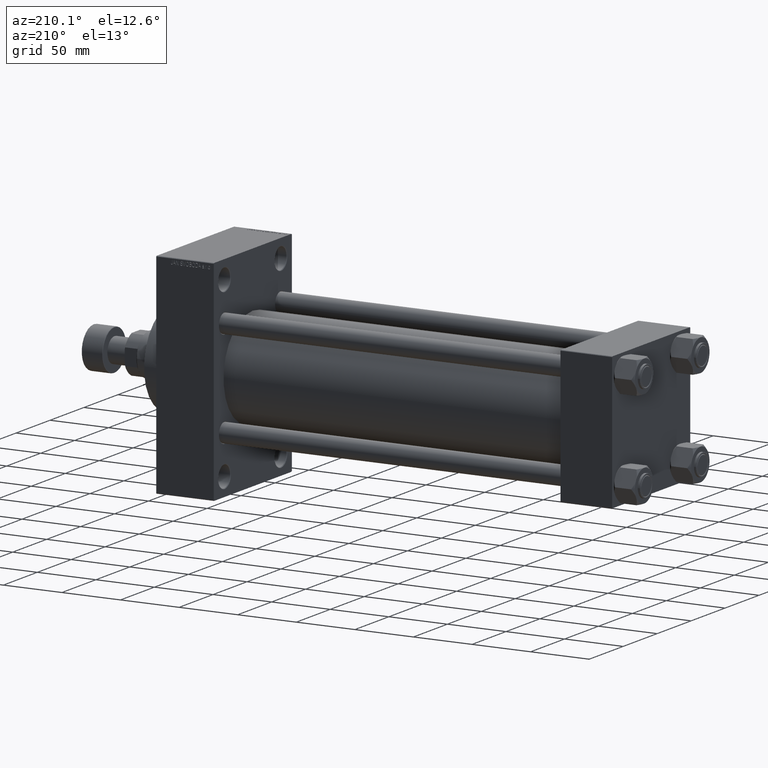
[diagram: clean part render]
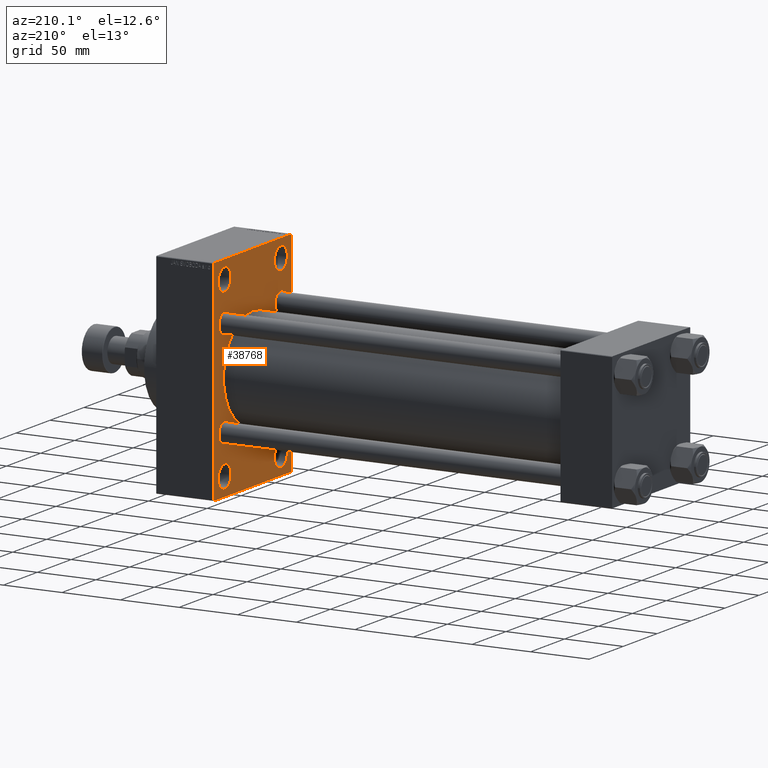
[diagram: same view with one face highlighted and labeled with its STEP entity id]
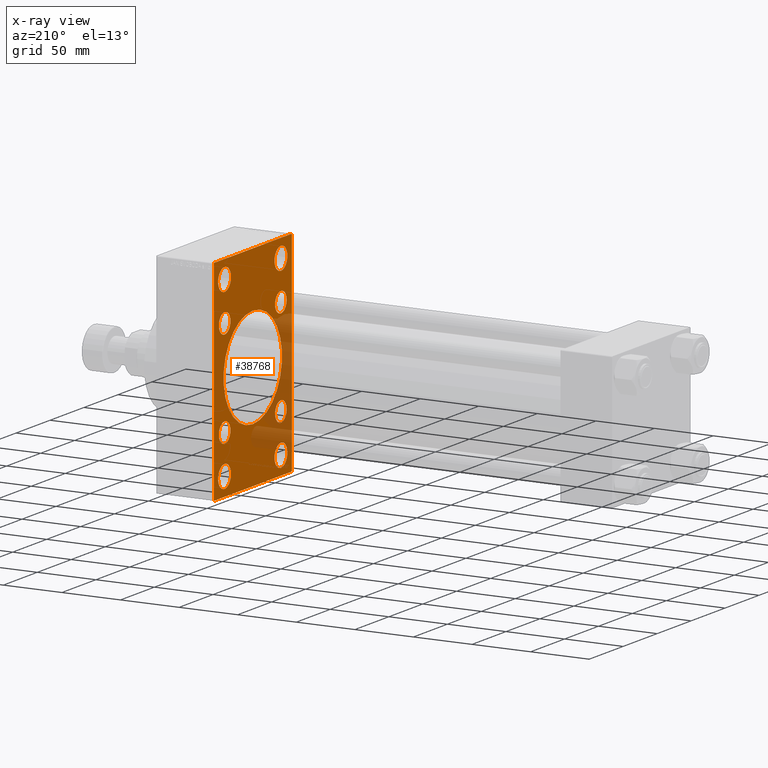
[diagram: x-ray of the same camera — body ghosted, the highlighted face saturated]
A machine part, auxiliary view. The second image highlights one B-rep face of the part: STEP entity #38768.
The next image is the same camera in x-ray: the body ghosted, the highlighted face saturated — about 21% of this face is hidden behind the body in this view.
In plain terms, the highlighted planar face has unit normal (-1, 0, 0).
Its self-contained STEP definition (entity closure, byte-faithful):
#248 = VERTEX_POINT ( 'NONE', #35170 ) ;
#362 = ORIENTED_EDGE ( 'NONE', *, *, #6468, .T. ) ;
#406 = DIRECTION ( 'NONE',  ( -0.000000000000000000, -0.7071067811865573427, -0.7071067811865378028 ) ) ;
#458 = VERTEX_POINT ( 'NONE', #30154 ) ;
#506 = AXIS2_PLACEMENT_3D ( 'NONE', #26643, #11740, #45248 ) ;
#623 = AXIS2_PLACEMENT_3D ( 'NONE', #8592, #8111, #19143 ) ;
#671 = EDGE_CURVE ( 'NONE', #21686, #27157, #994, .T. ) ;
#987 = EDGE_LOOP ( 'NONE', ( #13451, #17661 ) ) ;
#991 = EDGE_LOOP ( 'NONE', ( #31301, #16054 ) ) ;
#994 = LINE ( 'NONE', #34265, #35295 ) ;
#1790 = EDGE_CURVE ( 'NONE', #29014, #35029, #10347, .T. ) ;
#1932 = DIRECTION ( 'NONE',  ( 1.000000000000000000, -0.000000000000000000, 0.000000000000000000 ) ) ;
#2410 = DIRECTION ( 'NONE',  ( 0.000000000000000000, 0.000000000000000000, 1.000000000000000000 ) ) ;
#2604 = CARTESIAN_POINT ( 'NONE',  ( 339.9999999999999432, -41.49999999999999289, -74.49999999999998579 ) ) ;
#2654 = EDGE_CURVE ( 'NONE', #5598, #18975, #29131, .T. ) ;
#2697 = ORIENTED_EDGE ( 'NONE', *, *, #15554, .T. ) ;
#3516 = VERTEX_POINT ( 'NONE', #33089 ) ;
#3532 = LINE ( 'NONE', #33601, #16492 ) ;
#3687 = CARTESIAN_POINT ( 'NONE',  ( 339.9999999999999432, 2.663896022368408223E-15, -43.00000000000000000 ) ) ;
#4057 = CARTESIAN_POINT ( 'NONE',  ( 339.9999999999999432, 0.000000000000000000, 0.000000000000000000 ) ) ;
#4071 = CARTESIAN_POINT ( 'NONE',  ( 339.9999999999999432, 41.50000000000000711, 74.50000000000001421 ) ) ;
#4719 = CARTESIAN_POINT ( 'NONE',  ( 339.9999999999999432, 56.99999999999997868, -90.00000000000000000 ) ) ;
#4955 = DIRECTION ( 'NONE',  ( 0.000000000000000000, 0.000000000000000000, 1.000000000000000000 ) ) ;
#5598 = VERTEX_POINT ( 'NONE', #48273 ) ;
#5657 = DIRECTION ( 'NONE',  ( 0.000000000000000000, 0.000000000000000000, 1.000000000000000000 ) ) ;
#5677 = LINE ( 'NONE', #46997, #20483 ) ;
#5808 = ORIENTED_EDGE ( 'NONE', *, *, #33409, .T. ) ;
#5842 = DIRECTION ( 'NONE',  ( 1.000000000000000000, -0.000000000000000000, 0.000000000000000000 ) ) ;
#6031 = DIRECTION ( 'NONE',  ( 0.000000000000000000, 0.000000000000000000, 1.000000000000000000 ) ) ;
#6102 = LINE ( 'NONE', #21498, #9493 ) ;
#6162 = CIRCLE ( 'NONE', #47526, 9.499999999999896971 ) ;
#6468 = EDGE_CURVE ( 'NONE', #248, #3516, #43330, .T. ) ;
#6469 = VERTEX_POINT ( 'NONE', #33831 ) ;
#6496 = VERTEX_POINT ( 'NONE', #19422 ) ;
#6582 = ORIENTED_EDGE ( 'NONE', *, *, #13879, .T. ) ;
#6636 = DIRECTION ( 'NONE',  ( 0.000000000000000000, 0.000000000000000000, -1.000000000000000000 ) ) ;
#6747 = CIRCLE ( 'NONE', #44257, 9.500000000000008882 ) ;
#6858 = CARTESIAN_POINT ( 'NONE',  ( 339.9999999999999432, -57.00000000000002132, -90.00000000000001421 ) ) ;
#7126 = EDGE_CURVE ( 'NONE', #40349, #21686, #18815, .T. ) ;
#7416 = DIRECTION ( 'NONE',  ( 1.000000000000000000, -0.000000000000000000, 0.000000000000000000 ) ) ;
#8111 = DIRECTION ( 'NONE',  ( 1.000000000000000000, -0.000000000000000000, 0.000000000000000000 ) ) ;
#8208 = CARTESIAN_POINT ( 'NONE',  ( 339.9999999999999432, 41.34999999999999432, -32.84999999999999432 ) ) ;
#8437 = DIRECTION ( 'NONE',  ( -0.000000000000000000, 0.000000000000000000, 1.000000000000000000 ) ) ;
#8545 = DIRECTION ( 'NONE',  ( 1.000000000000000000, -0.000000000000000000, 0.000000000000000000 ) ) ;
#8592 = CARTESIAN_POINT ( 'NONE',  ( 339.9999999999999432, -41.34999999999998721, -41.35000000000000853 ) ) ;
#8640 = VERTEX_POINT ( 'NONE', #21402 ) ;
#8657 = CARTESIAN_POINT ( 'NONE',  ( 339.9999999999999432, 41.50000000000000711, 65.00000000000000000 ) ) ;
#9262 = CIRCLE ( 'NONE', #16318, 9.499999999999896971 ) ;
#9346 = VERTEX_POINT ( 'NONE', #8208 ) ;
#9380 = EDGE_CURVE ( 'NONE', #27157, #25263, #23389, .T. ) ;
#9481 = EDGE_CURVE ( 'NONE', #6496, #21238, #45783, .T. ) ;
#9493 = VECTOR ( 'NONE', #48139, 1000.000000000000000 ) ;
#9580 = EDGE_CURVE ( 'NONE', #39639, #8640, #13121, .T. ) ;
#10347 = CIRCLE ( 'NONE', #22856, 9.500000000000008882 ) ;
#10353 = CARTESIAN_POINT ( 'NONE',  ( 339.9999999999999432, 41.34999999999999432, 49.85000000000001563 ) ) ;
#10568 = CARTESIAN_POINT ( 'NONE',  ( 339.9999999999999432, -41.49999999999999289, 84.00000000000001421 ) ) ;
#10648 = CARTESIAN_POINT ( 'NONE',  ( 339.9999999999999432, 56.99999999999997158, 89.99999999999998579 ) ) ;
#10858 = VERTEX_POINT ( 'NONE', #3687 ) ;
#11337 = DIRECTION ( 'NONE',  ( 0.000000000000000000, 0.000000000000000000, 1.000000000000000000 ) ) ;
#11399 = VECTOR ( 'NONE', #24598, 1000.000000000000114 ) ;
#11423 = DIRECTION ( 'NONE',  ( 0.000000000000000000, 0.000000000000000000, 1.000000000000000000 ) ) ;
#11477 = CARTESIAN_POINT ( 'NONE',  ( 339.9999999999999432, -41.49999999999999289, 74.50000000000001421 ) ) ;
#11516 = CARTESIAN_POINT ( 'NONE',  ( 339.9999999999999432, -41.34999999999998721, 41.35000000000000853 ) ) ;
#11592 = CARTESIAN_POINT ( 'NONE',  ( 339.9999999999999432, 41.50000000000000711, -74.50000000000000000 ) ) ;
#11740 = DIRECTION ( 'NONE',  ( 1.000000000000000000, 0.000000000000000000, 0.000000000000000000 ) ) ;
#11898 = FACE_BOUND ( 'NONE', #12082, .T. ) ;
#12082 = EDGE_LOOP ( 'NONE', ( #14402, #362 ) ) ;
#12114 = VECTOR ( 'NONE', #45700, 1000.000000000000114 ) ;
#12208 = CIRCLE ( 'NONE', #506, 43.00000000000000000 ) ;
#12539 = CARTESIAN_POINT ( 'NONE',  ( 339.9999999999999432, 41.34999999999999432, -49.85000000000001563 ) ) ;
#12725 = EDGE_CURVE ( 'NONE', #19709, #44883, #44187, .T. ) ;
#12760 = CARTESIAN_POINT ( 'NONE',  ( 339.9999999999999432, -41.49999999999999289, 74.50000000000001421 ) ) ;
#12787 = CARTESIAN_POINT ( 'NONE',  ( 339.9999999999999432, 41.50000000000000711, -74.50000000000000000 ) ) ;
#13121 = LINE ( 'NONE', #35132, #11399 ) ;
#13268 = CARTESIAN_POINT ( 'NONE',  ( 339.9999999999999432, -41.49999999999999289, -74.49999999999998579 ) ) ;
#13403 = ORIENTED_EDGE ( 'NONE', *, *, #36446, .T. ) ;
#13434 = EDGE_CURVE ( 'NONE', #35029, #29014, #38777, .T. ) ;
#13451 = ORIENTED_EDGE ( 'NONE', *, *, #25177, .T. ) ;
#13712 = EDGE_CURVE ( 'NONE', #18807, #10858, #12208, .T. ) ;
#13879 = EDGE_CURVE ( 'NONE', #21238, #6496, #6747, .T. ) ;
#13911 = CARTESIAN_POINT ( 'NONE',  ( 339.9999999999999432, 41.34999999999999432, -41.35000000000000142 ) ) ;
#14402 = ORIENTED_EDGE ( 'NONE', *, *, #47767, .T. ) ;
#14967 = DIRECTION ( 'NONE',  ( 1.000000000000000000, 0.000000000000000000, 0.000000000000000000 ) ) ;
#15143 = CARTESIAN_POINT ( 'NONE',  ( 339.9999999999999432, 73.49999999999998579, 73.49999999999998579 ) ) ;
#15239 = DIRECTION ( 'NONE',  ( 1.000000000000000000, -0.000000000000000000, 0.000000000000000000 ) ) ;
#15554 = EDGE_CURVE ( 'NONE', #36952, #48297, #17610, .T. ) ;
#15601 = VERTEX_POINT ( 'NONE', #31787 ) ;
#16054 = ORIENTED_EDGE ( 'NONE', *, *, #13434, .T. ) ;
#16300 = ORIENTED_EDGE ( 'NONE', *, *, #29153, .T. ) ;
#16318 = AXIS2_PLACEMENT_3D ( 'NONE', #2604, #16557, #31465 ) ;
#16492 = VECTOR ( 'NONE', #41200, 1000.000000000000000 ) ;
#16557 = DIRECTION ( 'NONE',  ( 1.000000000000000000, -0.000000000000000000, 0.000000000000000000 ) ) ;
#16880 = CIRCLE ( 'NONE', #23122, 8.500000000000007105 ) ;
#17001 = AXIS2_PLACEMENT_3D ( 'NONE', #13911, #5842, #2410 ) ;
#17418 = ORIENTED_EDGE ( 'NONE', *, *, #2654, .T. ) ;
#17495 = EDGE_CURVE ( 'NONE', #48297, #36952, #16880, .T. ) ;
#17610 = CIRCLE ( 'NONE', #38706, 8.500000000000007105 ) ;
#17661 = ORIENTED_EDGE ( 'NONE', *, *, #12725, .T. ) ;
#17936 = EDGE_LOOP ( 'NONE', ( #22641, #28056 ) ) ;
#17958 = AXIS2_PLACEMENT_3D ( 'NONE', #30604, #14967, #19373 ) ;
#18440 = EDGE_LOOP ( 'NONE', ( #38443, #35075 ) ) ;
#18742 = DIRECTION ( 'NONE',  ( -1.000000000000000000, 0.000000000000000000, -0.000000000000000000 ) ) ;
#18807 = VERTEX_POINT ( 'NONE', #25753 ) ;
#18815 = LINE ( 'NONE', #15143, #12114 ) ;
#18975 = VERTEX_POINT ( 'NONE', #24472 ) ;
#18997 = CARTESIAN_POINT ( 'NONE',  ( 339.9999999999999432, 73.49999999999920419, -73.50000000000125056 ) ) ;
#19035 = ORIENTED_EDGE ( 'NONE', *, *, #46422, .T. ) ;
#19143 = DIRECTION ( 'NONE',  ( 0.000000000000000000, 0.000000000000000000, 1.000000000000000000 ) ) ;
#19373 = DIRECTION ( 'NONE',  ( 0.000000000000000000, 0.000000000000000000, -1.000000000000000000 ) ) ;
#19422 = CARTESIAN_POINT ( 'NONE',  ( 339.9999999999999432, 41.50000000000000711, 84.00000000000001421 ) ) ;
#19579 = DIRECTION ( 'NONE',  ( 1.000000000000000000, -0.000000000000000000, 0.000000000000000000 ) ) ;
#19709 = VERTEX_POINT ( 'NONE', #29280 ) ;
#19711 = FACE_BOUND ( 'NONE', #22990, .T. ) ;
#20066 = DIRECTION ( 'NONE',  ( 0.000000000000000000, 0.000000000000000000, 1.000000000000000000 ) ) ;
#20483 = VECTOR ( 'NONE', #6636, 1000.000000000000000 ) ;
#20966 = ORIENTED_EDGE ( 'NONE', *, *, #34499, .F. ) ;
#21238 = VERTEX_POINT ( 'NONE', #8657 ) ;
#21402 = CARTESIAN_POINT ( 'NONE',  ( 339.9999999999999432, -57.50000000000002132, -89.50000000000002842 ) ) ;
#21498 = CARTESIAN_POINT ( 'NONE',  ( 339.9999999999999432, -73.49999999999960210, 73.50000000000062528 ) ) ;
#21686 = VERTEX_POINT ( 'NONE', #23414 ) ;
#22641 = ORIENTED_EDGE ( 'NONE', *, *, #46991, .T. ) ;
#22654 = EDGE_CURVE ( 'NONE', #458, #15601, #9262, .T. ) ;
#22856 = AXIS2_PLACEMENT_3D ( 'NONE', #11477, #45228, #44744 ) ;
#22888 = FACE_BOUND ( 'NONE', #32155, .T. ) ;
#22990 = EDGE_LOOP ( 'NONE', ( #30281, #16300 ) ) ;
#23122 = AXIS2_PLACEMENT_3D ( 'NONE', #27053, #29996, #11423 ) ;
#23124 = VECTOR ( 'NONE', #406, 1000.000000000000000 ) ;
#23246 = EDGE_CURVE ( 'NONE', #15601, #458, #6162, .T. ) ;
#23325 = EDGE_LOOP ( 'NONE', ( #2697, #43688 ) ) ;
#23389 = LINE ( 'NONE', #18997, #23124 ) ;
#23414 = CARTESIAN_POINT ( 'NONE',  ( 339.9999999999999432, 57.49999999999997158, 89.49999999999998579 ) ) ;
#23897 = AXIS2_PLACEMENT_3D ( 'NONE', #11592, #15239, #11337 ) ;
#24293 = VERTEX_POINT ( 'NONE', #12539 ) ;
#24472 = CARTESIAN_POINT ( 'NONE',  ( 339.9999999999999432, -41.34999999999998721, 32.85000000000000142 ) ) ;
#24598 = DIRECTION ( 'NONE',  ( 0.000000000000000000, -0.7071067811865965336, 0.7071067811864985009 ) ) ;
#25177 = EDGE_CURVE ( 'NONE', #44883, #19709, #28084, .T. ) ;
#25263 = VERTEX_POINT ( 'NONE', #4719 ) ;
#25753 = CARTESIAN_POINT ( 'NONE',  ( 339.9999999999999432, -2.602085213965210642E-15, 43.00000000000000000 ) ) ;
#25780 = DIRECTION ( 'NONE',  ( 0.000000000000000000, 0.000000000000000000, 1.000000000000000000 ) ) ;
#26316 = PLANE ( 'NONE',  #28411 ) ;
#26643 = CARTESIAN_POINT ( 'NONE',  ( 339.9999999999999432, -2.602085213965210642E-15, 0.000000000000000000 ) ) ;
#26900 = CARTESIAN_POINT ( 'NONE',  ( 339.9999999999999432, 41.34999999999999432, 41.35000000000000142 ) ) ;
#27031 = FACE_BOUND ( 'NONE', #17936, .T. ) ;
#27053 = CARTESIAN_POINT ( 'NONE',  ( 339.9999999999999432, 41.34999999999999432, 41.35000000000000142 ) ) ;
#27157 = VERTEX_POINT ( 'NONE', #46058 ) ;
#27910 = DIRECTION ( 'NONE',  ( 1.000000000000000000, -0.000000000000000000, 0.000000000000000000 ) ) ;
#27956 = AXIS2_PLACEMENT_3D ( 'NONE', #46869, #39537, #6031 ) ;
#28056 = ORIENTED_EDGE ( 'NONE', *, *, #45770, .T. ) ;
#28084 = CIRCLE ( 'NONE', #42940, 9.500000000000008882 ) ;
#28406 = EDGE_LOOP ( 'NONE', ( #28415, #6582 ) ) ;
#28411 = AXIS2_PLACEMENT_3D ( 'NONE', #4057, #18742, #8437 ) ;
#28415 = ORIENTED_EDGE ( 'NONE', *, *, #9481, .T. ) ;
#28572 = CARTESIAN_POINT ( 'NONE',  ( 339.9999999999999432, 41.34999999999999432, 32.84999999999999432 ) ) ;
#28679 = VECTOR ( 'NONE', #46557, 1000.000000000000000 ) ;
#29014 = VERTEX_POINT ( 'NONE', #10568 ) ;
#29131 = CIRCLE ( 'NONE', #40071, 8.500000000000007105 ) ;
#29153 = EDGE_CURVE ( 'NONE', #10858, #18807, #47620, .T. ) ;
#29280 = CARTESIAN_POINT ( 'NONE',  ( 339.9999999999999432, 41.50000000000000711, -84.00000000000000000 ) ) ;
#29976 = FACE_BOUND ( 'NONE', #987, .T. ) ;
#29996 = DIRECTION ( 'NONE',  ( 1.000000000000000000, -0.000000000000000000, 0.000000000000000000 ) ) ;
#30154 = CARTESIAN_POINT ( 'NONE',  ( 339.9999999999999432, -41.49999999999999289, -65.00000000000008527 ) ) ;
#30281 = ORIENTED_EDGE ( 'NONE', *, *, #13712, .T. ) ;
#30604 = CARTESIAN_POINT ( 'NONE',  ( 339.9999999999999432, -2.602085213965210642E-15, 0.000000000000000000 ) ) ;
#30944 = FACE_BOUND ( 'NONE', #23325, .T. ) ;
#31301 = ORIENTED_EDGE ( 'NONE', *, *, #1790, .T. ) ;
#31465 = DIRECTION ( 'NONE',  ( 0.000000000000000000, 0.000000000000000000, 1.000000000000000000 ) ) ;
#31518 = DIRECTION ( 'NONE',  ( 0.000000000000000000, 0.000000000000000000, 1.000000000000000000 ) ) ;
#31592 = EDGE_CURVE ( 'NONE', #40349, #6469, #3532, .T. ) ;
#31641 = CARTESIAN_POINT ( 'NONE',  ( 339.9999999999999432, 57.49999999999997868, -90.00000000000000000 ) ) ;
#31755 = AXIS2_PLACEMENT_3D ( 'NONE', #12760, #27910, #5657 ) ;
#31765 = DIRECTION ( 'NONE',  ( 0.000000000000000000, 0.000000000000000000, 1.000000000000000000 ) ) ;
#31787 = CARTESIAN_POINT ( 'NONE',  ( 339.9999999999999432, -41.49999999999999289, -83.99999999999988631 ) ) ;
#32083 = DIRECTION ( 'NONE',  ( 1.000000000000000000, -0.000000000000000000, 0.000000000000000000 ) ) ;
#32155 = EDGE_LOOP ( 'NONE', ( #17418, #13403 ) ) ;
#32668 = CARTESIAN_POINT ( 'NONE',  ( 339.9999999999999432, 41.50000000000000711, 74.50000000000001421 ) ) ;
#33042 = AXIS2_PLACEMENT_3D ( 'NONE', #11516, #19579, #33994 ) ;
#33089 = CARTESIAN_POINT ( 'NONE',  ( 339.9999999999999432, -41.34999999999998721, -32.85000000000000142 ) ) ;
#33409 = EDGE_CURVE ( 'NONE', #43910, #6469, #6102, .T. ) ;
#33412 = ORIENTED_EDGE ( 'NONE', *, *, #9580, .T. ) ;
#33601 = CARTESIAN_POINT ( 'NONE',  ( 339.9999999999999432, 57.49999999999997158, 89.99999999999998579 ) ) ;
#33831 = CARTESIAN_POINT ( 'NONE',  ( 339.9999999999999432, -57.00000000000007105, 89.99999999999997158 ) ) ;
#33885 = FACE_OUTER_BOUND ( 'NONE', #47706, .T. ) ;
#33891 = ORIENTED_EDGE ( 'NONE', *, *, #31592, .F. ) ;
#33994 = DIRECTION ( 'NONE',  ( 0.000000000000000000, 0.000000000000000000, 1.000000000000000000 ) ) ;
#34141 = FACE_BOUND ( 'NONE', #991, .T. ) ;
#34265 = CARTESIAN_POINT ( 'NONE',  ( 339.9999999999999432, 57.49999999999997158, 89.99999999999998579 ) ) ;
#34331 = CARTESIAN_POINT ( 'NONE',  ( 339.9999999999999432, -41.34999999999998721, -41.35000000000000853 ) ) ;
#34499 = EDGE_CURVE ( 'NONE', #43910, #8640, #5677, .T. ) ;
#34620 = FACE_BOUND ( 'NONE', #18440, .T. ) ;
#34637 = DIRECTION ( 'NONE',  ( 1.000000000000000000, -0.000000000000000000, 0.000000000000000000 ) ) ;
#34986 = CIRCLE ( 'NONE', #27956, 8.500000000000007105 ) ;
#35029 = VERTEX_POINT ( 'NONE', #37748 ) ;
#35075 = ORIENTED_EDGE ( 'NONE', *, *, #23246, .T. ) ;
#35090 = LINE ( 'NONE', #31641, #28679 ) ;
#35132 = CARTESIAN_POINT ( 'NONE',  ( 339.9999999999999432, -73.49999999999603517, -73.50000000000625278 ) ) ;
#35170 = CARTESIAN_POINT ( 'NONE',  ( 339.9999999999999432, -41.34999999999998721, -49.85000000000002274 ) ) ;
#35295 = VECTOR ( 'NONE', #41848, 1000.000000000000000 ) ;
#35521 = DIRECTION ( 'NONE',  ( 0.000000000000000000, 0.000000000000000000, 1.000000000000000000 ) ) ;
#35536 = AXIS2_PLACEMENT_3D ( 'NONE', #34331, #7416, #25780 ) ;
#35678 = CARTESIAN_POINT ( 'NONE',  ( 339.9999999999999432, -41.34999999999998721, 41.35000000000000853 ) ) ;
#36059 = ORIENTED_EDGE ( 'NONE', *, *, #671, .T. ) ;
#36446 = EDGE_CURVE ( 'NONE', #18975, #5598, #39294, .T. ) ;
#36952 = VERTEX_POINT ( 'NONE', #10353 ) ;
#37336 = FACE_BOUND ( 'NONE', #28406, .T. ) ;
#37748 = CARTESIAN_POINT ( 'NONE',  ( 339.9999999999999432, -41.49999999999999289, 65.00000000000000000 ) ) ;
#38014 = CIRCLE ( 'NONE', #623, 8.500000000000007105 ) ;
#38443 = ORIENTED_EDGE ( 'NONE', *, *, #22654, .T. ) ;
#38706 = AXIS2_PLACEMENT_3D ( 'NONE', #26900, #8545, #20066 ) ;
#38768 = ADVANCED_FACE ( 'NONE', ( #34141, #34620, #29976, #37336, #22888, #30944, #27031, #11898, #19711, #33885 ), #26316, .T. ) ;
#38777 = CIRCLE ( 'NONE', #31755, 9.500000000000008882 ) ;
#38865 = CARTESIAN_POINT ( 'NONE',  ( 339.9999999999999432, 41.50000000000000711, -64.99999999999998579 ) ) ;
#39294 = CIRCLE ( 'NONE', #33042, 8.500000000000007105 ) ;
#39471 = ORIENTED_EDGE ( 'NONE', *, *, #9380, .T. ) ;
#39537 = DIRECTION ( 'NONE',  ( 1.000000000000000000, -0.000000000000000000, 0.000000000000000000 ) ) ;
#39639 = VERTEX_POINT ( 'NONE', #6858 ) ;
#39665 = CIRCLE ( 'NONE', #17001, 8.500000000000007105 ) ;
#40071 = AXIS2_PLACEMENT_3D ( 'NONE', #35678, #1932, #31765 ) ;
#40246 = DIRECTION ( 'NONE',  ( 1.000000000000000000, -0.000000000000000000, 0.000000000000000000 ) ) ;
#40349 = VERTEX_POINT ( 'NONE', #10648 ) ;
#41078 = AXIS2_PLACEMENT_3D ( 'NONE', #4071, #34637, #41263 ) ;
#41200 = DIRECTION ( 'NONE',  ( 0.000000000000000000, -1.000000000000000000, -1.206764157201257291E-16 ) ) ;
#41263 = DIRECTION ( 'NONE',  ( 0.000000000000000000, 0.000000000000000000, 1.000000000000000000 ) ) ;
#41341 = ORIENTED_EDGE ( 'NONE', *, *, #7126, .T. ) ;
#41848 = DIRECTION ( 'NONE',  ( 0.000000000000000000, 3.854941057726238467E-17, -1.000000000000000000 ) ) ;
#42940 = AXIS2_PLACEMENT_3D ( 'NONE', #12787, #45564, #4955 ) ;
#43330 = CIRCLE ( 'NONE', #35536, 8.500000000000007105 ) ;
#43688 = ORIENTED_EDGE ( 'NONE', *, *, #17495, .T. ) ;
#43910 = VERTEX_POINT ( 'NONE', #44538 ) ;
#44187 = CIRCLE ( 'NONE', #23897, 9.500000000000008882 ) ;
#44257 = AXIS2_PLACEMENT_3D ( 'NONE', #32668, #40246, #31518 ) ;
#44538 = CARTESIAN_POINT ( 'NONE',  ( 339.9999999999999432, -57.50000000000002132, 89.50000000000002842 ) ) ;
#44744 = DIRECTION ( 'NONE',  ( 0.000000000000000000, 0.000000000000000000, 1.000000000000000000 ) ) ;
#44883 = VERTEX_POINT ( 'NONE', #38865 ) ;
#45228 = DIRECTION ( 'NONE',  ( 1.000000000000000000, -0.000000000000000000, 0.000000000000000000 ) ) ;
#45248 = DIRECTION ( 'NONE',  ( 0.000000000000000000, 0.000000000000000000, -1.000000000000000000 ) ) ;
#45564 = DIRECTION ( 'NONE',  ( 1.000000000000000000, -0.000000000000000000, 0.000000000000000000 ) ) ;
#45700 = DIRECTION ( 'NONE',  ( 0.000000000000000000, 0.7071067811865474617, -0.7071067811865474617 ) ) ;
#45770 = EDGE_CURVE ( 'NONE', #24293, #9346, #39665, .T. ) ;
#45783 = CIRCLE ( 'NONE', #41078, 9.500000000000008882 ) ;
#46058 = CARTESIAN_POINT ( 'NONE',  ( 339.9999999999999432, 57.49999999999997868, -89.49999999999995737 ) ) ;
#46422 = EDGE_CURVE ( 'NONE', #25263, #39639, #35090, .T. ) ;
#46557 = DIRECTION ( 'NONE',  ( 0.000000000000000000, -1.000000000000000000, -1.206764157201257045E-16 ) ) ;
#46869 = CARTESIAN_POINT ( 'NONE',  ( 339.9999999999999432, 41.34999999999999432, -41.35000000000000142 ) ) ;
#46991 = EDGE_CURVE ( 'NONE', #9346, #24293, #34986, .T. ) ;
#46997 = CARTESIAN_POINT ( 'NONE',  ( 339.9999999999999432, -57.50000000000002132, 89.99999999999997158 ) ) ;
#47526 = AXIS2_PLACEMENT_3D ( 'NONE', #13268, #32083, #35521 ) ;
#47620 = CIRCLE ( 'NONE', #17958, 43.00000000000000000 ) ;
#47706 = EDGE_LOOP ( 'NONE', ( #19035, #33412, #20966, #5808, #33891, #41341, #36059, #39471 ) ) ;
#47767 = EDGE_CURVE ( 'NONE', #3516, #248, #38014, .T. ) ;
#48139 = DIRECTION ( 'NONE',  ( -0.000000000000000000, 0.7071067811865524577, 0.7071067811865426878 ) ) ;
#48273 = CARTESIAN_POINT ( 'NONE',  ( 339.9999999999999432, -41.34999999999998721, 49.85000000000002274 ) ) ;
#48297 = VERTEX_POINT ( 'NONE', #28572 ) ;